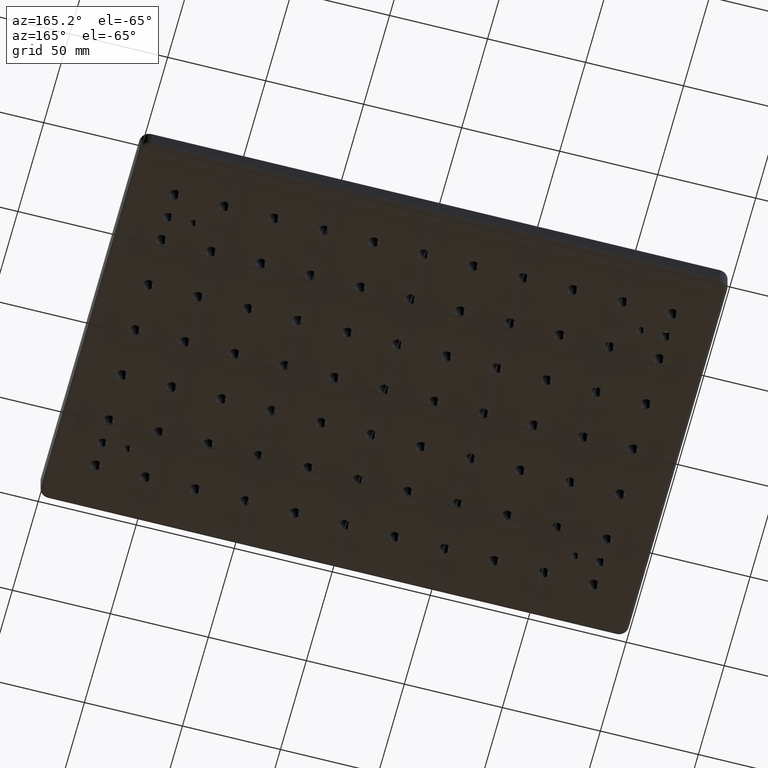
[diagram: clean part render]
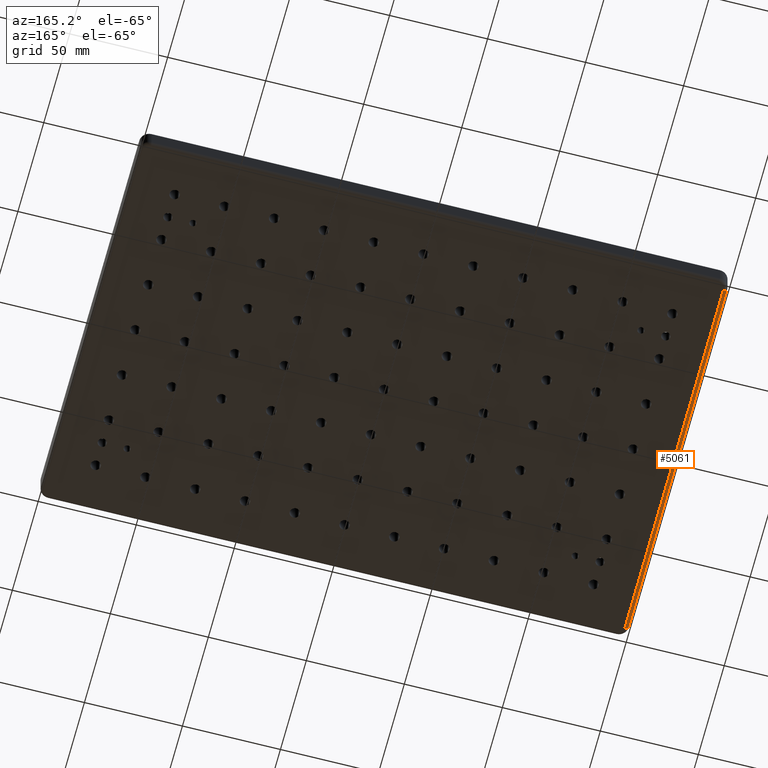
[diagram: same view with one face highlighted and labeled with its STEP entity id]
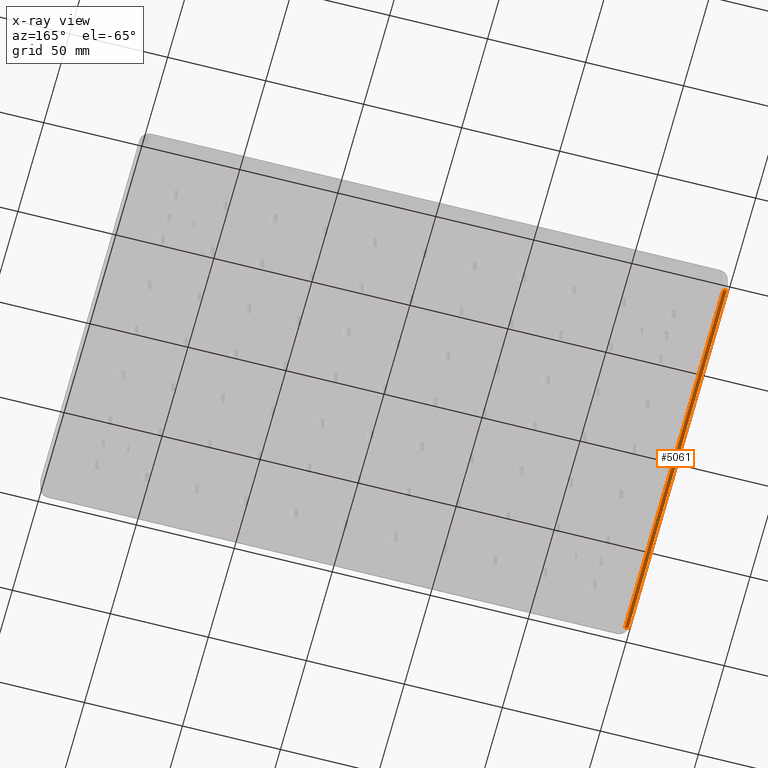
[diagram: x-ray of the same camera — body ghosted, the highlighted face saturated]
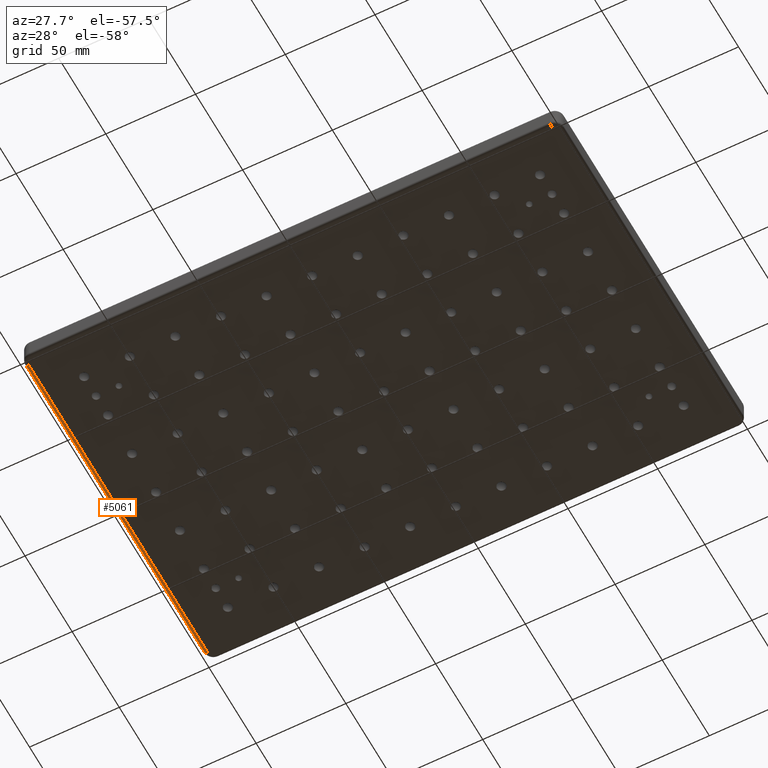
[diagram: same view with one face highlighted and labeled with its STEP entity id]
A machine part, auxiliary view. The second image highlights one B-rep face of the part: STEP entity #5061.
The next image is the same camera in x-ray: the body ghosted, the highlighted face saturated — about 0% of this face is hidden behind the body in this view.
A second angle (auxiliary view) of the same face is appended — the face is thin or edge-on in the first view.
In plain terms, the highlighted cylindrical surface (edge-blend (fillet) strip) has radius 2 mm, axis along (0, -1, 0).
Its self-contained STEP definition (entity closure, byte-faithful):
#87 = DIRECTION ( 'NONE',  ( 0.0000000000000000000, 0.0000000000000000000, 1.000000000000000000 ) ) ;
#299 = DIRECTION ( 'NONE',  ( 0.0000000000000000000, 0.0000000000000000000, 1.000000000000000000 ) ) ;
#407 = VECTOR ( 'NONE', #1902, 1000.000000000000000 ) ;
#426 = ORIENTED_EDGE ( 'NONE', *, *, #5066, .F. ) ;
#512 = VERTEX_POINT ( 'NONE', #6227 ) ;
#877 = VECTOR ( 'NONE', #3072, 1000.000000000000000 ) ;
#966 = VERTEX_POINT ( 'NONE', #2159 ) ;
#1073 = EDGE_CURVE ( 'NONE', #512, #1748, #2330, .T. ) ;
#1429 = ORIENTED_EDGE ( 'NONE', *, *, #3814, .T. ) ;
#1748 = VERTEX_POINT ( 'NONE', #4083 ) ;
#1902 = DIRECTION ( 'NONE',  ( 0.0000000000000000000, -1.000000000000000000, 0.0000000000000000000 ) ) ;
#2074 = CARTESIAN_POINT ( 'NONE',  ( -147.9999999999999700, -95.00000000000011400, -13.00000000000000000 ) ) ;
#2159 = CARTESIAN_POINT ( 'NONE',  ( -149.9999999999999700, -95.00000000000011400, -11.00000000000000000 ) ) ;
#2279 = CARTESIAN_POINT ( 'NONE',  ( -147.9999999999999700, 95.00000000000011400, -11.00000000000000000 ) ) ;
#2330 = CIRCLE ( 'NONE', #3848, 2.000000000000000000 ) ;
#2424 = CARTESIAN_POINT ( 'NONE',  ( -147.9999999999999700, -95.00000000000011400, -11.00000000000000000 ) ) ;
#2466 = FACE_OUTER_BOUND ( 'NONE', #5197, .T. ) ;
#2677 = AXIS2_PLACEMENT_3D ( 'NONE', #2424, #7011, #7085 ) ;
#2835 = ORIENTED_EDGE ( 'NONE', *, *, #1073, .F. ) ;
#3072 = DIRECTION ( 'NONE',  ( -0.0000000000000000000, 1.000000000000000000, -0.0000000000000000000 ) ) ;
#3251 = VERTEX_POINT ( 'NONE', #2074 ) ;
#3703 = DIRECTION ( 'NONE',  ( 0.0000000000000000000, 1.000000000000000000, 0.0000000000000000000 ) ) ;
#3814 = EDGE_CURVE ( 'NONE', #3251, #966, #6040, .T. ) ;
#3848 = AXIS2_PLACEMENT_3D ( 'NONE', #2279, #4591, #87 ) ;
#3888 = CYLINDRICAL_SURFACE ( 'NONE', #2677, 2.000000000000000000 ) ;
#4080 = ORIENTED_EDGE ( 'NONE', *, *, #4190, .F. ) ;
#4083 = CARTESIAN_POINT ( 'NONE',  ( -149.9999999999999700, 95.00000000000011400, -11.00000000000000000 ) ) ;
#4190 = EDGE_CURVE ( 'NONE', #3251, #512, #5421, .T. ) ;
#4192 = AXIS2_PLACEMENT_3D ( 'NONE', #4250, #3703, #299 ) ;
#4250 = CARTESIAN_POINT ( 'NONE',  ( -147.9999999999999700, -95.00000000000011400, -11.00000000000000000 ) ) ;
#4591 = DIRECTION ( 'NONE',  ( 0.0000000000000000000, 1.000000000000000000, 0.0000000000000000000 ) ) ;
#4777 = CARTESIAN_POINT ( 'NONE',  ( -147.9999999999999700, 95.00000000000011400, -13.00000000000000000 ) ) ;
#5035 = LINE ( 'NONE', #5304, #407 ) ;
#5061 = ADVANCED_FACE ( 'NONE', ( #2466 ), #3888, .T. ) ;
#5066 = EDGE_CURVE ( 'NONE', #1748, #966, #5035, .T. ) ;
#5197 = EDGE_LOOP ( 'NONE', ( #1429, #426, #2835, #4080 ) ) ;
#5304 = CARTESIAN_POINT ( 'NONE',  ( -149.9999999999999700, -95.00000000000011400, -11.00000000000000000 ) ) ;
#5421 = LINE ( 'NONE', #4777, #877 ) ;
#6040 = CIRCLE ( 'NONE', #4192, 2.000000000000000000 ) ;
#6227 = CARTESIAN_POINT ( 'NONE',  ( -147.9999999999999700, 95.00000000000011400, -13.00000000000000000 ) ) ;
#7011 = DIRECTION ( 'NONE',  ( 0.0000000000000000000, -1.000000000000000000, 0.0000000000000000000 ) ) ;
#7085 = DIRECTION ( 'NONE',  ( 0.0000000000000000000, 0.0000000000000000000, -1.000000000000000000 ) ) ;